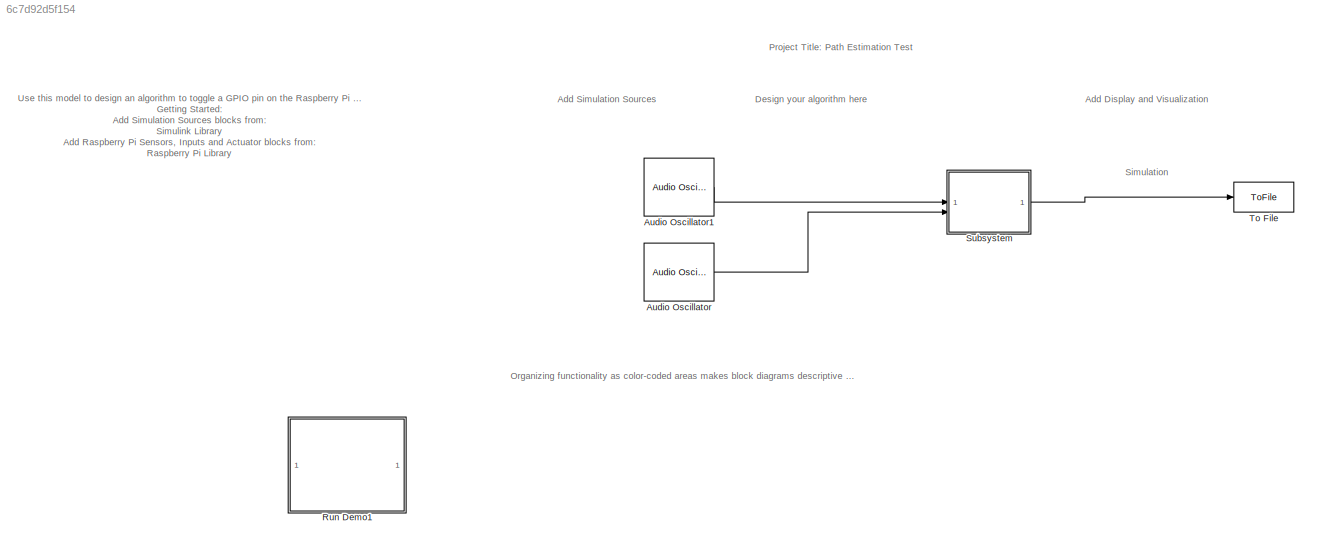
MODEL slx_6c7d92d5f154
KIND model
CONFIG AbsTol = auto
CONFIG EnableMultiTasking = on
CONFIG FixedStep = auto
CONFIG MaxStep = auto
CONFIG MinStep = auto
CONFIG RelTol = 1e-3
CONFIG SampleTimeConstraint = Unconstrained
CONFIG SolverName = ode45
CONFIG StartTime = 0.0
CONFIG StopTime = 10.0
BLOCK [Reference] Audio Oscillator  REF=audiosources/Audio Oscillator
  SourceBlock = audiosources/Audio Oscillator
  SourceType = audio.simulink.AudioOscillator
BLOCK [Reference] Audio Oscillator1  REF=audiosources/Audio Oscillator
  SourceBlock = audiosources/Audio Oscillator
  SourceType = audio.simulink.AudioOscillator
BLOCK [SubSystem] Run Demo1
  Description = Controls host-side RTDX processing.
  ShowPortLabels = none
  UserDataPersistent = on
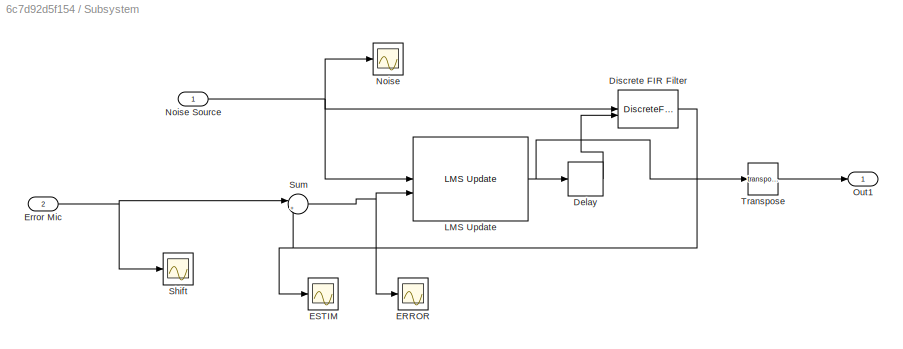
BLOCK [SubSystem] Subsystem
BLOCK [Delay] Subsystem/Delay
  DelayLength = 1
  InitialCondition = 0
  InputPortMap = u0
BLOCK [DiscreteFir] Subsystem/Discrete FIR Filter
  CoefSource = Input port
  InputPortMap = u0,u1
  OutputPortMap = o0
BLOCK [Scope] Subsystem/ERROR
  Floating = off
  NumInputPorts = 1
  ScopeSpecificationString = Simulink.scopes.TimeScopeBlockCfg('CurrentConfiguration', extmgr.ConfigurationSet(extmgr.Configuration('Core','General UI',true),extmgr.Configuration('Core','Source UI',true),extmgr.Configuration('Sources','WiredSimulink',true,'DataLoggingVariableName','ScopeData4'),extmgr.Configuration('Visuals','Time Domain',true,'SerializedDisplays',{struct('MinYLimReal','-443.33166','MaxYLimReal','277.6485','Y...<+1426ch>
BLOCK [Scope] Subsystem/ESTIM
  Floating = off
  NumInputPorts = 1
  ScopeSpecificationString = Simulink.scopes.TimeScopeBlockCfg('CurrentConfiguration', extmgr.ConfigurationSet(extmgr.Configuration('Core','General UI',true),extmgr.Configuration('Core','Source UI',true),extmgr.Configuration('Sources','WiredSimulink',true,'DataLoggingVariableName','ScopeData3'),extmgr.Configuration('Visuals','Time Domain',true,'SerializedDisplays',{struct('MinYLimReal','-2062.359','MaxYLimReal','1895.5753','Y...<+1421ch>
BLOCK [Inport] Subsystem/Error Mic
  Port = 2
BLOCK [Reference] Subsystem/LMS Update  REF=dspadpt3/LMS Update
  SourceBlock = dspadpt3/LMS Update
  SourceType = dsp.simulink.LMSUpdate
BLOCK [Scope] Subsystem/Noise
  Floating = off
  NumInputPorts = 1
  ScopeSpecificationString = Simulink.scopes.TimeScopeBlockCfg('CurrentConfiguration', extmgr.ConfigurationSet(extmgr.Configuration('Core','General UI',true),extmgr.Configuration('Core','Source UI',true),extmgr.Configuration('Sources','WiredSimulink',true,'DataLoggingVariableName','ScopeData6'),extmgr.Configuration('Visuals','Time Domain',true,'SerializedDisplays',{struct('MinYLimReal','-37497.85907','MaxYLimReal','37497.8590...<+1451ch>
BLOCK [Inport] Subsystem/Noise Source
BLOCK [Outport] Subsystem/Out1
BLOCK [Scope] Subsystem/Shift
  Floating = off
  NumInputPorts = 1
  ScopeSpecificationString = Simulink.scopes.TimeScopeBlockCfg('CurrentConfiguration', extmgr.ConfigurationSet(extmgr.Configuration('Core','General UI',true),extmgr.Configuration('Core','Source UI',true),extmgr.Configuration('Sources','WiredSimulink',true,'DataLoggingVariableName','ScopeData5'),extmgr.Configuration('Visuals','Time Domain',true,'SerializedDisplays',{struct('MinYLimReal','-37499.01586','MaxYLimReal','37495.6981...<+1450ch>
BLOCK [Sum] Subsystem/Sum
  Inputs = |+-
BLOCK [Math] Subsystem/Transpose
  Operator = transpose
BLOCK [ToFile] To File
  Filename = coeffs.mat
ANNOTATION (root): Use this model to design an algorithm to toggle a GPIO pin on the Raspberry Pi Hardware. Getting Started: Add Simulation Sources blocks from: Simulink Library Add Raspberry Pi Sensors, Inputs and Actuator blocks from: Raspberry Pi Library Configure Raspberry Pi Hardware: Open Model Configuration Parameters dialog Under the Hardware Implementation option, select the Raspberry Pi hardware from the H...<+325ch>
ANNOTATION (root): Organizing functionality as color-coded areas makes block diagrams descriptive and helps to develop increasingly complex algorithms.
ANNOTATION (root): Add Display and Visualization
ANNOTATION (root): Add Simulation Sources
ANNOTATION (root): Design your algorithm here
ANNOTATION (root): Project Title: Path Estimation Test
ANNOTATION (root): Simulation
LINE Audio Oscillator1:1 -> Subsystem:1
LINE Audio Oscillator:1 -> Subsystem:2
LINE Subsystem/Delay:1 -> Subsystem/Discrete FIR Filter:2
NET Subsystem/Discrete FIR Filter:1 -> Subsystem/ESTIM:1, Subsystem/Sum:2
NET Subsystem/Error Mic:1 -> Subsystem/Shift:1, Subsystem/Sum:1
NET Subsystem/LMS Update:1 -> Subsystem/Delay:1, Subsystem/Transpose:1
NET Subsystem/Noise Source:1 -> Subsystem/Discrete FIR Filter:1, Subsystem/LMS Update:1, Subsystem/Noise:1
NET Subsystem/Sum:1 -> Subsystem/ERROR:1, Subsystem/LMS Update:2
LINE Subsystem/Transpose:1 -> Subsystem/Out1:1
LINE Subsystem:1 -> To File:1
note: NET lines group one-source signal fan-out (src -> all destinations, sorted); 1:1 wires keep LINE
